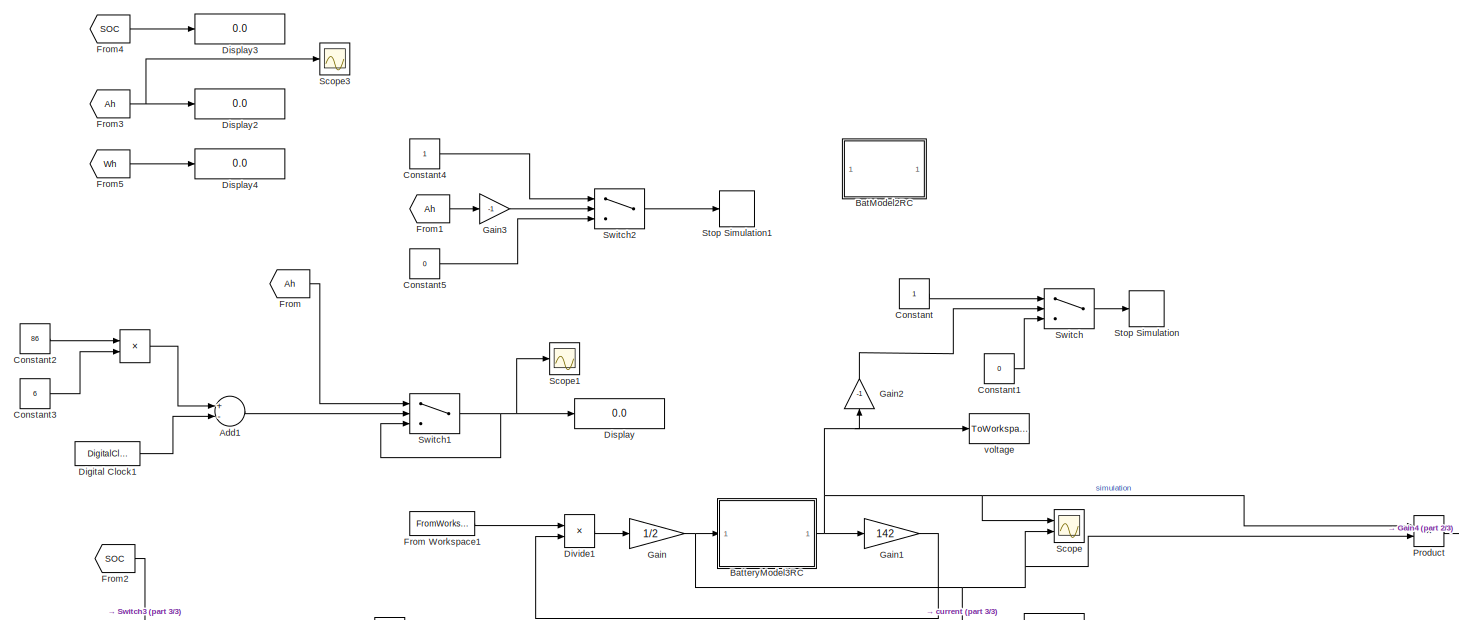
[diagram: root canvas - part 1/3, center side, full height]
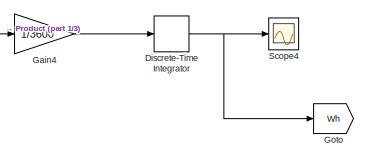
[diagram: root canvas - part 2/3, bottom right region]
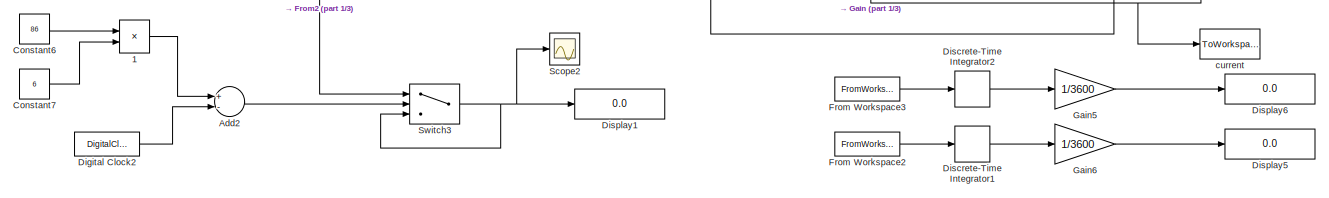
[diagram: root canvas - part 3/3, bottom left region]
MODEL slx_28b4c7de4f9d
KIND model
CONFIG AbsTol = auto
CONFIG EnableMultiTasking = off
CONFIG FixedStep = 0.01
CONFIG MaxStep = auto
CONFIG MinStep = auto
CONFIG RelTol = 1e-3
CONFIG SampleTimeConstraint = Unconstrained
CONFIG Solver = FixedStepDiscrete
CONFIG SolverName = FixedStepDiscrete
CONFIG StartTime = 0.0
CONFIG StopTime = 86.24
BLOCK [Product]  
  Commented = on
  InputSameDT = off
  Inputs = **
  OutDataTypeStr = Inherit: Inherit via internal rule
  Ports = [2, 1]
  RndMeth = Floor
  SaturateOnIntegerOverflow = off
BLOCK [Product]  1
  Commented = on
  InputSameDT = off
  Inputs = **
  OutDataTypeStr = Inherit: Inherit via internal rule
  Ports = [2, 1]
  RndMeth = Floor
  SaturateOnIntegerOverflow = off
BLOCK [Sum] Add1
  Commented = on
  InputSameDT = off
  Inputs = +-
  OutDataTypeStr = Inherit: Inherit via internal rule
  Ports = [2, 1]
  SaturateOnIntegerOverflow = off
BLOCK [Sum] Add2
  Commented = on
  InputSameDT = off
  Inputs = +-
  OutDataTypeStr = Inherit: Inherit via internal rule
  Ports = [2, 1]
  SaturateOnIntegerOverflow = off
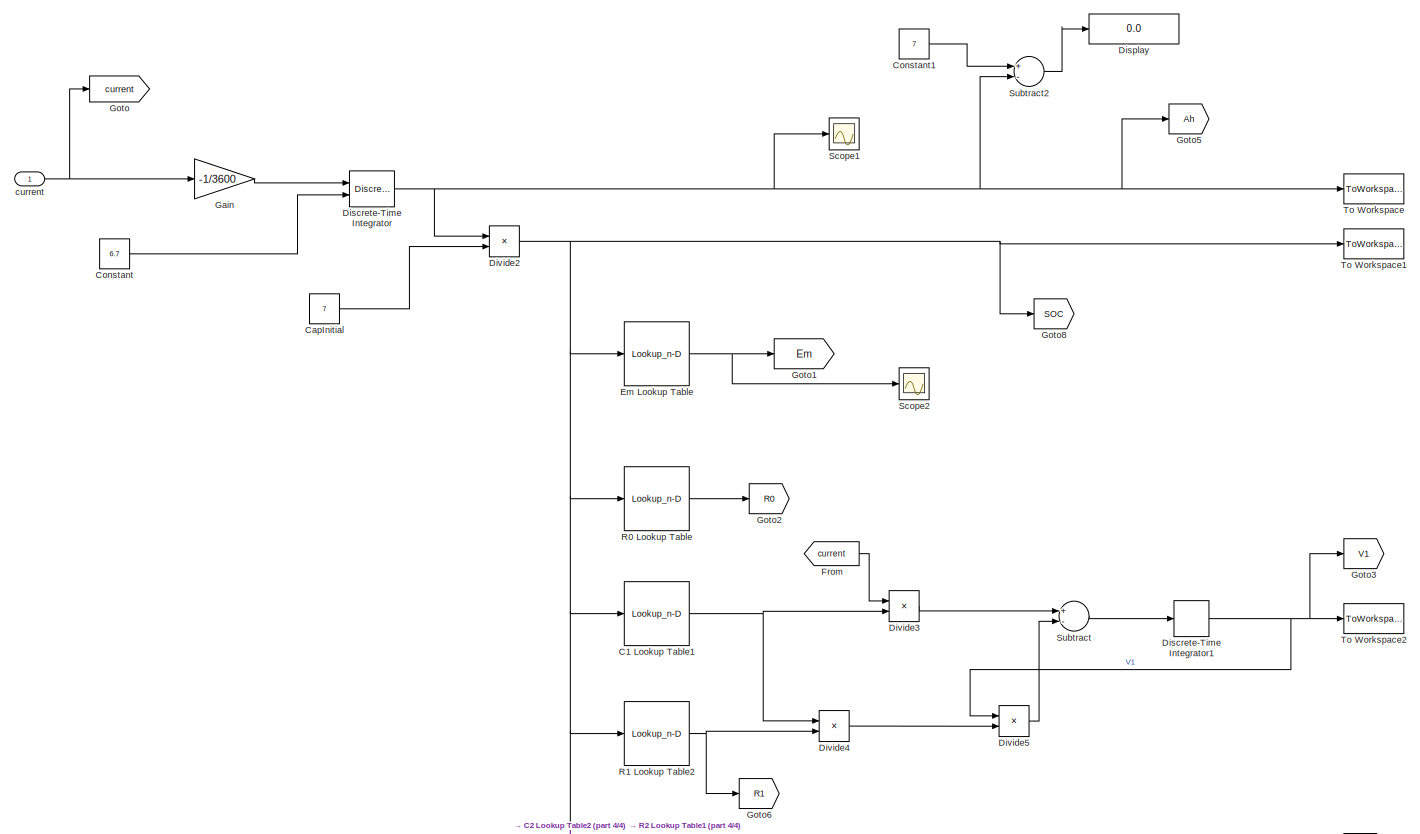
[diagram: BatModel2RC - part 1/4, middle left region]
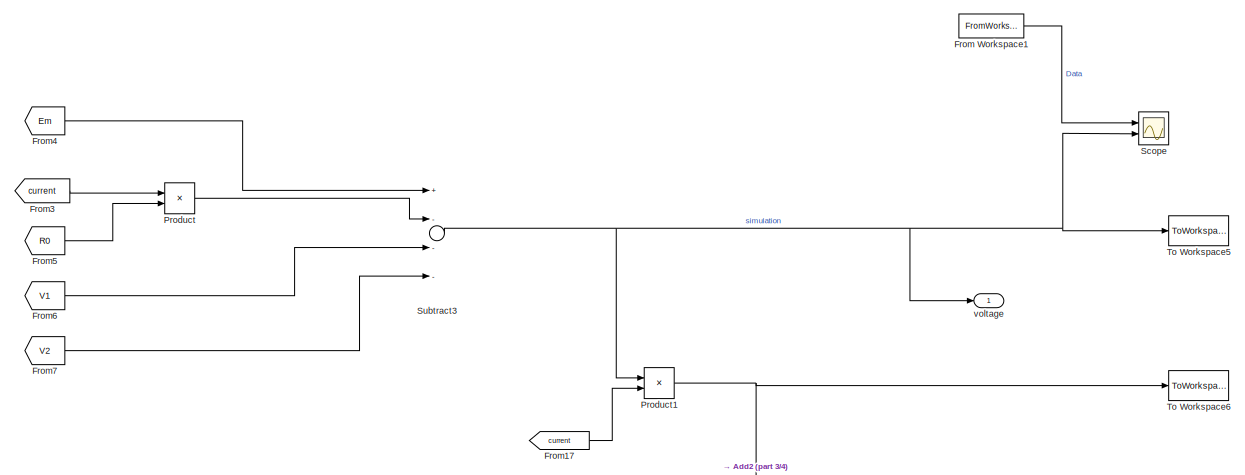
[diagram: BatModel2RC - part 2/4, middle right region]
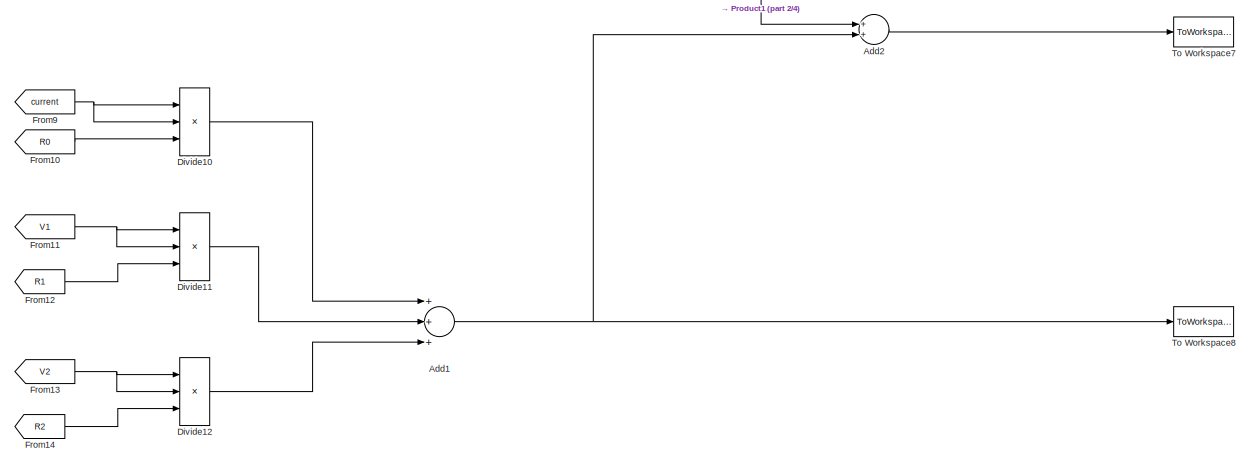
[diagram: BatModel2RC - part 3/4, bottom right region]
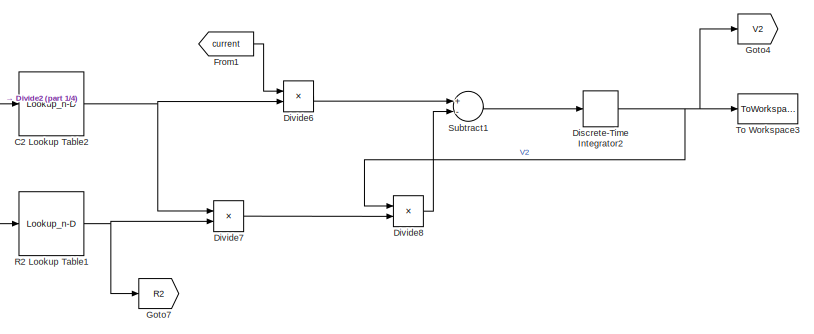
[diagram: BatModel2RC - part 4/4, bottom left region]
BLOCK [SubSystem] BatModel2RC
  Commented = on
  Ports = [1, 1]
  RequestExecContextInheritance = off
BLOCK [Sum] BatModel2RC/Add1
  Commented = on
  InputSameDT = off
  Inputs = +++
  OutDataTypeStr = Inherit: Inherit via internal rule
  Ports = [3, 1]
  SaturateOnIntegerOverflow = off
BLOCK [Sum] BatModel2RC/Add2
  Commented = on
  InputSameDT = off
  OutDataTypeStr = Inherit: Inherit via internal rule
  Ports = [2, 1]
  SaturateOnIntegerOverflow = off
BLOCK [Lookup_n-D] BatModel2RC/C1 Lookup Table1
  BreakpointsForDimension1 = SOC_LUT
  InternalRulePriority = Speed
  NumberOfTableDimensions = 1
  Ports = [1, 1]
  RndMeth = Simplest
  Table = C1Prime(1,:)
BLOCK [Lookup_n-D] BatModel2RC/C2 Lookup Table2
  BreakpointsForDimension1 = SOC_LUT
  InternalRulePriority = Speed
  NumberOfTableDimensions = 1
  Ports = [1, 1]
  RndMeth = Simplest
  Table = C2Prime(1,:)
BLOCK [Constant] BatModel2RC/CapInitial
  SampleTime = -1
  Value = 7
BLOCK [Constant] BatModel2RC/Constant
  SampleTime = -1
  Value = 6.7
BLOCK [Constant] BatModel2RC/Constant1
  SampleTime = 0.01
  Value = 7
BLOCK [DiscreteIntegrator] BatModel2RC/Discrete-Time Integrator
  ICPrevOutput = DiscIntNeverNeededParam
  ICPrevScaledInput = DiscIntNeverNeededParam
  InitialConditionSetting = Auto
  InitialConditionSource = external
  Ports = [2, 1]
  SampleTime = -1
BLOCK [DiscreteIntegrator] BatModel2RC/Discrete-Time Integrator1
  ICPrevOutput = DiscIntNeverNeededParam
  ICPrevScaledInput = DiscIntNeverNeededParam
  InitialCondition = InitialCapVoltage(1)
  InitialConditionSetting = Auto
  Ports = [1, 1]
  SampleTime = -1
BLOCK [DiscreteIntegrator] BatModel2RC/Discrete-Time Integrator2
  ICPrevOutput = DiscIntNeverNeededParam
  ICPrevScaledInput = DiscIntNeverNeededParam
  InitialCondition = InitialCapVoltage(2)
  InitialConditionSetting = Auto
  Ports = [1, 1]
  SampleTime = -1
BLOCK [Display] BatModel2RC/Display
  Decimation = 1
  Ports = [1]
BLOCK [Product] BatModel2RC/Divide10
  Commented = on
  InputSameDT = off
  Inputs = ***
  OutDataTypeStr = Inherit: Inherit via internal rule
  Ports = [3, 1]
  RndMeth = Floor
  SaturateOnIntegerOverflow = off
BLOCK [Product] BatModel2RC/Divide11
  Commented = on
  InputSameDT = off
  Inputs = **/
  OutDataTypeStr = Inherit: Inherit via internal rule
  Ports = [3, 1]
  RndMeth = Floor
  SaturateOnIntegerOverflow = off
BLOCK [Product] BatModel2RC/Divide12
  Commented = on
  InputSameDT = off
  Inputs = **/
  OutDataTypeStr = Inherit: Inherit via internal rule
  Ports = [3, 1]
  RndMeth = Floor
  SaturateOnIntegerOverflow = off
BLOCK [Product] BatModel2RC/Divide2
  InputSameDT = off
  Inputs = */
  OutDataTypeStr = Inherit: Inherit via internal rule
  Ports = [2, 1]
  RndMeth = Floor
  SaturateOnIntegerOverflow = off
BLOCK [Product] BatModel2RC/Divide3
  InputSameDT = off
  Inputs = */
  OutDataTypeStr = Inherit: Inherit via internal rule
  Ports = [2, 1]
  RndMeth = Floor
  SaturateOnIntegerOverflow = off
BLOCK [Product] BatModel2RC/Divide4
  InputSameDT = off
  Inputs = **
  OutDataTypeStr = Inherit: Inherit via internal rule
  Ports = [2, 1]
  RndMeth = Floor
  SaturateOnIntegerOverflow = off
BLOCK [Product] BatModel2RC/Divide5
  InputSameDT = off
  Inputs = */
  OutDataTypeStr = Inherit: Inherit via internal rule
  Ports = [2, 1]
  RndMeth = Floor
  SaturateOnIntegerOverflow = off
BLOCK [Product] BatModel2RC/Divide6
  InputSameDT = off
  Inputs = */
  OutDataTypeStr = Inherit: Inherit via internal rule
  Ports = [2, 1]
  RndMeth = Floor
  SaturateOnIntegerOverflow = off
BLOCK [Product] BatModel2RC/Divide7
  InputSameDT = off
  Inputs = **
  OutDataTypeStr = Inherit: Inherit via internal rule
  Ports = [2, 1]
  RndMeth = Floor
  SaturateOnIntegerOverflow = off
BLOCK [Product] BatModel2RC/Divide8
  InputSameDT = off
  Inputs = */
  OutDataTypeStr = Inherit: Inherit via internal rule
  Ports = [2, 1]
  RndMeth = Floor
  SaturateOnIntegerOverflow = off
BLOCK [Lookup_n-D] BatModel2RC/Em Lookup Table
  BreakpointsForDimension1 = SOC_LUT
  InternalRulePriority = Speed
  NumberOfTableDimensions = 1
  Ports = [1, 1]
  RndMeth = Simplest
  Table = Em
BLOCK [From] BatModel2RC/From
  GotoTag = current
BLOCK [FromWorkspace] BatModel2RC/From Workspace1
  Commented = on
  SampleTime = 0.001
  VariableName = voltagedata
  ZeroCross = on
BLOCK [From] BatModel2RC/From1
  GotoTag = current
BLOCK [From] BatModel2RC/From10
  Commented = on
  GotoTag = R0
BLOCK [From] BatModel2RC/From11
  Commented = on
  GotoTag = V1
BLOCK [From] BatModel2RC/From12
  Commented = on
  GotoTag = R1
BLOCK [From] BatModel2RC/From13
  Commented = on
  GotoTag = V2
BLOCK [From] BatModel2RC/From14
  Commented = on
  GotoTag = R2
BLOCK [From] BatModel2RC/From17
  Commented = on
  GotoTag = current
BLOCK [From] BatModel2RC/From3
  GotoTag = current
BLOCK [From] BatModel2RC/From4
  GotoTag = Em
BLOCK [From] BatModel2RC/From5
  GotoTag = R0
BLOCK [From] BatModel2RC/From6
  GotoTag = V1
BLOCK [From] BatModel2RC/From7
  GotoTag = V2
BLOCK [From] BatModel2RC/From9
  Commented = on
  GotoTag = current
BLOCK [Gain] BatModel2RC/Gain
  Gain = -1/3600
  OutDataTypeStr = Inherit: Inherit via internal rule
  ParamDataTypeStr = Inherit: Inherit via internal rule
  SaturateOnIntegerOverflow = off
BLOCK [Goto] BatModel2RC/Goto
  GotoTag = current
BLOCK [Goto] BatModel2RC/Goto1
  GotoTag = Em
BLOCK [Goto] BatModel2RC/Goto2
  GotoTag = R0
BLOCK [Goto] BatModel2RC/Goto3
  GotoTag = V1
BLOCK [Goto] BatModel2RC/Goto4
  GotoTag = V2
BLOCK [Goto] BatModel2RC/Goto5
  GotoTag = Ah
  TagVisibility = global
BLOCK [Goto] BatModel2RC/Goto6
  GotoTag = R1
BLOCK [Goto] BatModel2RC/Goto7
  GotoTag = R2
BLOCK [Goto] BatModel2RC/Goto8
  GotoTag = SOC
  TagVisibility = global
BLOCK [Product] BatModel2RC/Product
  InputSameDT = off
  OutDataTypeStr = Inherit: Inherit via internal rule
  Ports = [2, 1]
  RndMeth = Floor
  SaturateOnIntegerOverflow = off
BLOCK [Product] BatModel2RC/Product1
  Commented = on
  InputSameDT = off
  OutDataTypeStr = Inherit: Inherit via internal rule
  Ports = [2, 1]
  RndMeth = Floor
  SaturateOnIntegerOverflow = off
BLOCK [Lookup_n-D] BatModel2RC/R0 Lookup Table
  BreakpointsForDimension1 = SOC_LUT
  InternalRulePriority = Speed
  NumberOfTableDimensions = 1
  Ports = [1, 1]
  RndMeth = Simplest
  Table = R0
BLOCK [Lookup_n-D] BatModel2RC/R1 Lookup Table2
  BreakpointsForDimension1 = SOC_LUT
  InternalRulePriority = Speed
  NumberOfTableDimensions = 1
  Ports = [1, 1]
  RndMeth = Simplest
  Table = Rx(1,:)
BLOCK [Lookup_n-D] BatModel2RC/R2 Lookup Table1
  BreakpointsForDimension1 = SOC_LUT
  InternalRulePriority = Speed
  NumberOfTableDimensions = 1
  Ports = [1, 1]
  RndMeth = Simplest
  Table = Rx(2,:)
BLOCK [Scope] BatModel2RC/Scope
  Floating = off
  NumInputPorts = 2
  Ports = [2]
  ScopeSpecificationString = Simulink.scopes.TimeScopeBlockCfg('CurrentConfiguration', extmgr.ConfigurationSet(extmgr.Configuration('Core','General UI',true),extmgr.Configuration('Core','Source UI',true),extmgr.Configuration('Sources','WiredSimulink',true),extmgr.Configuration('Visuals','Time Domain',true,'SerializedDisplays',{struct('MinYLimReal','-0.51447','MaxYLimReal','4.6302','YLabelReal','','MinYLimMag','0.00000','MaxYL...<+1431ch>
BLOCK [Scope] BatModel2RC/Scope1
  Floating = off
  NumInputPorts = 1
  Ports = [1]
  ScopeSpecificationString = Simulink.scopes.TimeScopeBlockCfg('CurrentConfiguration', extmgr.ConfigurationSet(extmgr.Configuration('Core','General UI',true),extmgr.Configuration('Core','Source UI',true),extmgr.Configuration('Sources','WiredSimulink',true,'DataLoggingVariableName','ScopeData2'),extmgr.Configuration('Visuals','Time Domain',true,'SerializedDisplays',{struct('MinYLimReal','-2.25166','MaxYLimReal','8.02796','YLab...<+1456ch>
BLOCK [Scope] BatModel2RC/Scope2
  Floating = off
  NumInputPorts = 1
  Ports = [1]
  ScopeSpecificationString = Simulink.scopes.TimeScopeBlockCfg('CurrentConfiguration', extmgr.ConfigurationSet(extmgr.Configuration('Core','General UI',true),extmgr.Configuration('Core','Source UI',true),extmgr.Configuration('Sources','WiredSimulink',true,'DataLoggingVariableName','ScopeData3'),extmgr.Configuration('Visuals','Time Domain',true,'SerializedDisplays',{struct('MinYLimReal','3.07823','MaxYLimReal','4.26372','YLabe...<+1445ch>
BLOCK [Sum] BatModel2RC/Subtract
  InputSameDT = off
  Inputs = +-
  OutDataTypeStr = Inherit: Inherit via internal rule
  Ports = [2, 1]
  SaturateOnIntegerOverflow = off
BLOCK [Sum] BatModel2RC/Subtract1
  InputSameDT = off
  Inputs = +-
  OutDataTypeStr = Inherit: Inherit via internal rule
  Ports = [2, 1]
  SaturateOnIntegerOverflow = off
BLOCK [Sum] BatModel2RC/Subtract2
  InputSameDT = off
  Inputs = +-
  OutDataTypeStr = Inherit: Inherit via internal rule
  Ports = [2, 1]
  SaturateOnIntegerOverflow = off
BLOCK [Sum] BatModel2RC/Subtract3
  InputSameDT = off
  Inputs = +---
  OutDataTypeStr = Inherit: Inherit via internal rule
  Ports = [4, 1]
  SaturateOnIntegerOverflow = off
BLOCK [ToWorkspace] BatModel2RC/To Workspace
  FixptAsFi = on
  MaxDataPoints = inf
  Ports = [1]
  SampleTime = -1
  VariableName = Ah
BLOCK [ToWorkspace] BatModel2RC/To Workspace1
  FixptAsFi = on
  MaxDataPoints = inf
  Ports = [1]
  SampleTime = -1
  VariableName = SOC
BLOCK [ToWorkspace] BatModel2RC/To Workspace2
  FixptAsFi = on
  MaxDataPoints = inf
  Ports = [1]
  SampleTime = -1
  VariableName = V1
BLOCK [ToWorkspace] BatModel2RC/To Workspace3
  FixptAsFi = on
  MaxDataPoints = inf
  Ports = [1]
  SampleTime = -1
  VariableName = V2
BLOCK [ToWorkspace] BatModel2RC/To Workspace5
  FixptAsFi = on
  MaxDataPoints = inf
  Ports = [1]
  SampleTime = -1
  VariableName = BattVolt
BLOCK [ToWorkspace] BatModel2RC/To Workspace6
  Commented = on
  FixptAsFi = on
  MaxDataPoints = inf
  Ports = [1]
  SampleTime = -1
  VariableName = PwrLoad
BLOCK [ToWorkspace] BatModel2RC/To Workspace7
  Commented = on
  FixptAsFi = on
  MaxDataPoints = inf
  Ports = [1]
  SampleTime = -1
  VariableName = PwrStored
BLOCK [ToWorkspace] BatModel2RC/To Workspace8
  Commented = on
  FixptAsFi = on
  MaxDataPoints = inf
  Ports = [1]
  SampleTime = -1
  VariableName = Pwrloss
BLOCK [Inport] BatModel2RC/current
  IconDisplay = Port number
BLOCK [Outport] BatModel2RC/voltage
  IconDisplay = Port number
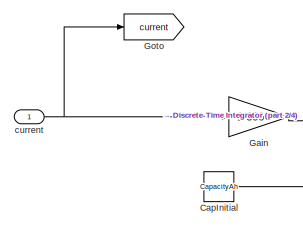
[diagram: BatteryModel3RC - part 1/4, top left region]
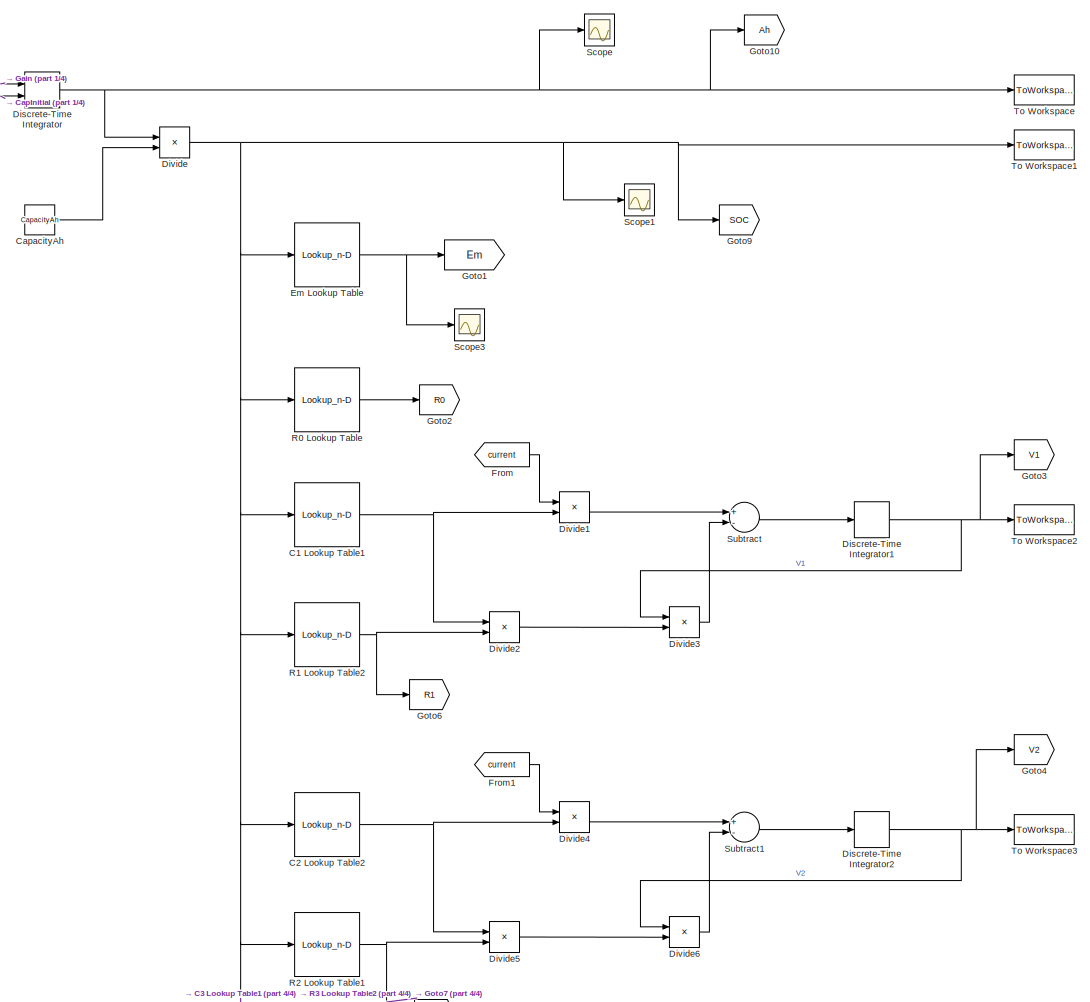
[diagram: BatteryModel3RC - part 2/4, middle left region]
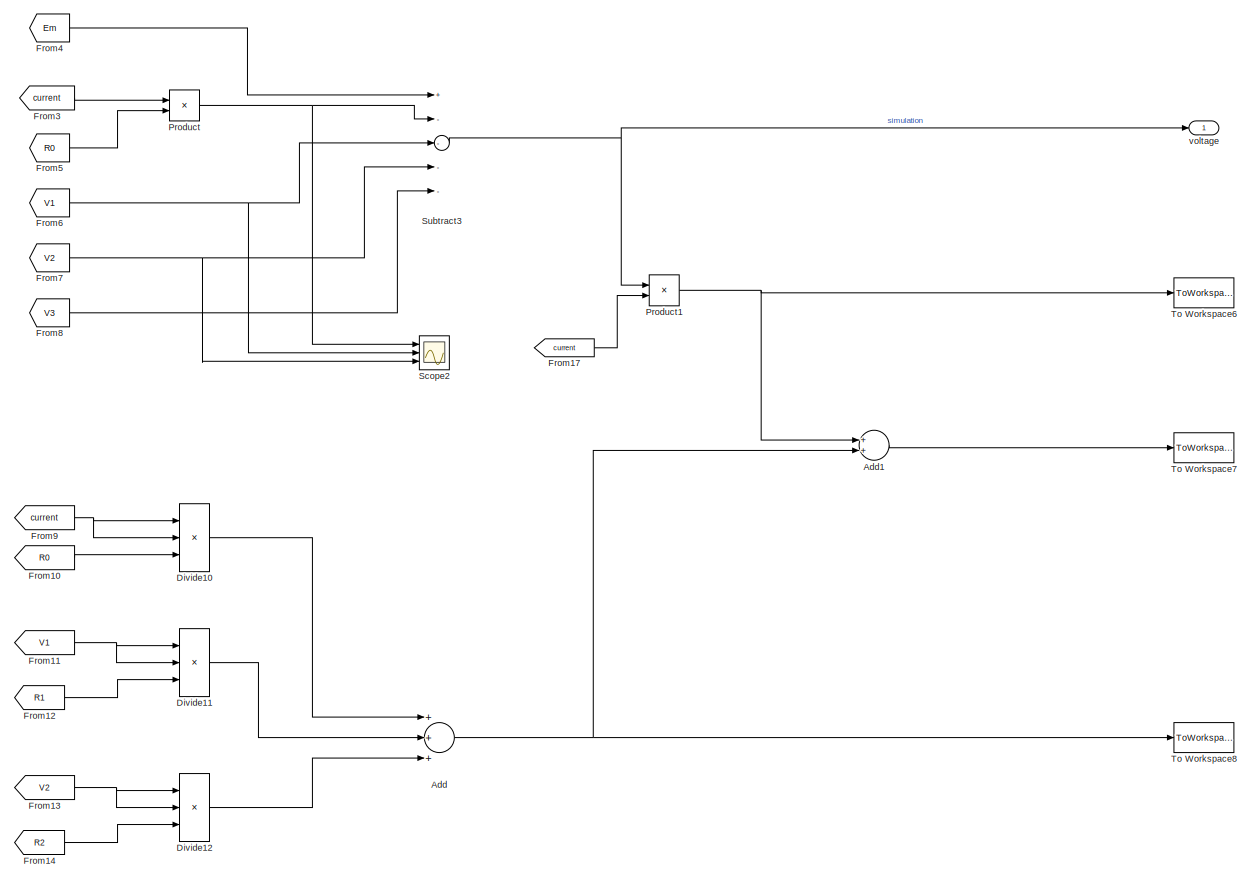
[diagram: BatteryModel3RC - part 3/4, middle right region]
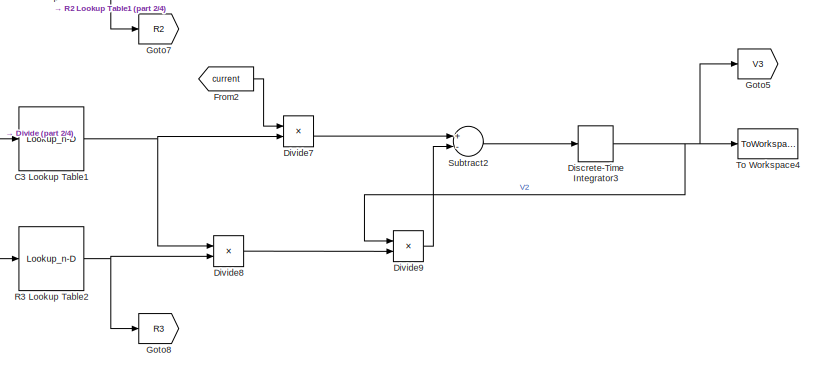
[diagram: BatteryModel3RC - part 4/4, bottom center region]
BLOCK [SubSystem] BatteryModel3RC
  Ports = [1, 1]
  RequestExecContextInheritance = off
BLOCK [Sum] BatteryModel3RC/Add
  Commented = on
  InputSameDT = off
  Inputs = +++
  OutDataTypeStr = Inherit: Inherit via internal rule
  Ports = [3, 1]
  SaturateOnIntegerOverflow = off
BLOCK [Sum] BatteryModel3RC/Add1
  Commented = on
  InputSameDT = off
  OutDataTypeStr = Inherit: Inherit via internal rule
  Ports = [2, 1]
  SaturateOnIntegerOverflow = off
BLOCK [Lookup_n-D] BatteryModel3RC/C1 Lookup Table1
  BreakpointsForDimension1 = SOC_LUT
  InternalRulePriority = Speed
  NumberOfTableDimensions = 1
  Ports = [1, 1]
  RndMeth = Simplest
  Table = C1Prime(1,:)
BLOCK [Lookup_n-D] BatteryModel3RC/C2 Lookup Table2
  BreakpointsForDimension1 = SOC_LUT
  InternalRulePriority = Speed
  NumberOfTableDimensions = 1
  Ports = [1, 1]
  RndMeth = Simplest
  Table = C2Prime(1,:)
BLOCK [Lookup_n-D] BatteryModel3RC/C3 Lookup Table1
  BreakpointsForDimension1 = SOC_LUT
  InternalRulePriority = Speed
  NumberOfTableDimensions = 1
  Ports = [1, 1]
  RndMeth = Simplest
  Table = C3Prime(1,:)
BLOCK [Constant] BatteryModel3RC/CapInitial
  SampleTime = -1
  Value = CapacityAh
BLOCK [Constant] BatteryModel3RC/CapacityAh
  SampleTime = -1
  Value = CapacityAh
BLOCK [DiscreteIntegrator] BatteryModel3RC/Discrete-Time Integrator
  ICPrevOutput = DiscIntNeverNeededParam
  ICPrevScaledInput = DiscIntNeverNeededParam
  InitialConditionSetting = Auto
  InitialConditionSource = external
  Ports = [2, 1]
  SampleTime = -1
BLOCK [DiscreteIntegrator] BatteryModel3RC/Discrete-Time Integrator1
  ICPrevOutput = DiscIntNeverNeededParam
  ICPrevScaledInput = DiscIntNeverNeededParam
  InitialConditionSetting = Auto
  Ports = [1, 1]
  SampleTime = -1
BLOCK [DiscreteIntegrator] BatteryModel3RC/Discrete-Time Integrator2
  ICPrevOutput = DiscIntNeverNeededParam
  ICPrevScaledInput = DiscIntNeverNeededParam
  InitialConditionSetting = Auto
  Ports = [1, 1]
  SampleTime = -1
BLOCK [DiscreteIntegrator] BatteryModel3RC/Discrete-Time Integrator3
  ICPrevOutput = DiscIntNeverNeededParam
  ICPrevScaledInput = DiscIntNeverNeededParam
  InitialConditionSetting = Auto
  Ports = [1, 1]
  SampleTime = -1
BLOCK [Product] BatteryModel3RC/Divide
  InputSameDT = off
  Inputs = */
  OutDataTypeStr = Inherit: Inherit via internal rule
  Ports = [2, 1]
  RndMeth = Floor
  SaturateOnIntegerOverflow = off
BLOCK [Product] BatteryModel3RC/Divide1
  InputSameDT = off
  Inputs = */
  OutDataTypeStr = Inherit: Inherit via internal rule
  Ports = [2, 1]
  RndMeth = Floor
  SaturateOnIntegerOverflow = off
BLOCK [Product] BatteryModel3RC/Divide10
  Commented = on
  InputSameDT = off
  Inputs = ***
  OutDataTypeStr = Inherit: Inherit via internal rule
  Ports = [3, 1]
  RndMeth = Floor
  SaturateOnIntegerOverflow = off
BLOCK [Product] BatteryModel3RC/Divide11
  Commented = on
  InputSameDT = off
  Inputs = **/
  OutDataTypeStr = Inherit: Inherit via internal rule
  Ports = [3, 1]
  RndMeth = Floor
  SaturateOnIntegerOverflow = off
BLOCK [Product] BatteryModel3RC/Divide12
  Commented = on
  InputSameDT = off
  Inputs = **/
  OutDataTypeStr = Inherit: Inherit via internal rule
  Ports = [3, 1]
  RndMeth = Floor
  SaturateOnIntegerOverflow = off
BLOCK [Product] BatteryModel3RC/Divide2
  InputSameDT = off
  Inputs = **
  OutDataTypeStr = Inherit: Inherit via internal rule
  Ports = [2, 1]
  RndMeth = Floor
  SaturateOnIntegerOverflow = off
BLOCK [Product] BatteryModel3RC/Divide3
  InputSameDT = off
  Inputs = */
  OutDataTypeStr = Inherit: Inherit via internal rule
  Ports = [2, 1]
  RndMeth = Floor
  SaturateOnIntegerOverflow = off
BLOCK [Product] BatteryModel3RC/Divide4
  InputSameDT = off
  Inputs = */
  OutDataTypeStr = Inherit: Inherit via internal rule
  Ports = [2, 1]
  RndMeth = Floor
  SaturateOnIntegerOverflow = off
BLOCK [Product] BatteryModel3RC/Divide5
  InputSameDT = off
  Inputs = **
  OutDataTypeStr = Inherit: Inherit via internal rule
  Ports = [2, 1]
  RndMeth = Floor
  SaturateOnIntegerOverflow = off
BLOCK [Product] BatteryModel3RC/Divide6
  InputSameDT = off
  Inputs = */
  OutDataTypeStr = Inherit: Inherit via internal rule
  Ports = [2, 1]
  RndMeth = Floor
  SaturateOnIntegerOverflow = off
BLOCK [Product] BatteryModel3RC/Divide7
  InputSameDT = off
  Inputs = */
  OutDataTypeStr = Inherit: Inherit via internal rule
  Ports = [2, 1]
  RndMeth = Floor
  SaturateOnIntegerOverflow = off
BLOCK [Product] BatteryModel3RC/Divide8
  InputSameDT = off
  Inputs = **
  OutDataTypeStr = Inherit: Inherit via internal rule
  Ports = [2, 1]
  RndMeth = Floor
  SaturateOnIntegerOverflow = off
BLOCK [Product] BatteryModel3RC/Divide9
  InputSameDT = off
  Inputs = */
  OutDataTypeStr = Inherit: Inherit via internal rule
  Ports = [2, 1]
  RndMeth = Floor
  SaturateOnIntegerOverflow = off
BLOCK [Lookup_n-D] BatteryModel3RC/Em Lookup Table
  BreakpointsForDimension1 = SOC_LUT
  InternalRulePriority = Speed
  NumberOfTableDimensions = 1
  Ports = [1, 1]
  RndMeth = Simplest
  Table = Em
BLOCK [From] BatteryModel3RC/From
  GotoTag = current
BLOCK [From] BatteryModel3RC/From1
  GotoTag = current
BLOCK [From] BatteryModel3RC/From10
  Commented = on
  GotoTag = R0
BLOCK [From] BatteryModel3RC/From11
  Commented = on
  GotoTag = V1
BLOCK [From] BatteryModel3RC/From12
  Commented = on
  GotoTag = R1
BLOCK [From] BatteryModel3RC/From13
  Commented = on
  GotoTag = V2
BLOCK [From] BatteryModel3RC/From14
  Commented = on
  GotoTag = R2
BLOCK [From] BatteryModel3RC/From17
  Commented = on
  GotoTag = current
BLOCK [From] BatteryModel3RC/From2
  GotoTag = current
BLOCK [From] BatteryModel3RC/From3
  GotoTag = current
BLOCK [From] BatteryModel3RC/From4
  GotoTag = Em
BLOCK [From] BatteryModel3RC/From5
  GotoTag = R0
BLOCK [From] BatteryModel3RC/From6
  GotoTag = V1
BLOCK [From] BatteryModel3RC/From7
  GotoTag = V2
BLOCK [From] BatteryModel3RC/From8
  GotoTag = V3
BLOCK [From] BatteryModel3RC/From9
  Commented = on
  GotoTag = current
BLOCK [Gain] BatteryModel3RC/Gain
  Gain = -1/3600
  OutDataTypeStr = Inherit: Inherit via internal rule
  ParamDataTypeStr = Inherit: Inherit via internal rule
  SaturateOnIntegerOverflow = off
BLOCK [Goto] BatteryModel3RC/Goto
  GotoTag = current
BLOCK [Goto] BatteryModel3RC/Goto1
  GotoTag = Em
BLOCK [Goto] BatteryModel3RC/Goto10
  GotoTag = Ah
  TagVisibility = global
BLOCK [Goto] BatteryModel3RC/Goto2
  GotoTag = R0
BLOCK [Goto] BatteryModel3RC/Goto3
  GotoTag = V1
BLOCK [Goto] BatteryModel3RC/Goto4
  GotoTag = V2
BLOCK [Goto] BatteryModel3RC/Goto5
  GotoTag = V3
BLOCK [Goto] BatteryModel3RC/Goto6
  GotoTag = R1
BLOCK [Goto] BatteryModel3RC/Goto7
  GotoTag = R2
BLOCK [Goto] BatteryModel3RC/Goto8
  GotoTag = R3
BLOCK [Goto] BatteryModel3RC/Goto9
  GotoTag = SOC
  TagVisibility = global
BLOCK [Product] BatteryModel3RC/Product
  InputSameDT = off
  OutDataTypeStr = Inherit: Inherit via internal rule
  Ports = [2, 1]
  RndMeth = Floor
  SaturateOnIntegerOverflow = off
BLOCK [Product] BatteryModel3RC/Product1
  Commented = on
  InputSameDT = off
  OutDataTypeStr = Inherit: Inherit via internal rule
  Ports = [2, 1]
  RndMeth = Floor
  SaturateOnIntegerOverflow = off
BLOCK [Lookup_n-D] BatteryModel3RC/R0 Lookup Table
  BreakpointsForDimension1 = SOC_LUT
  InternalRulePriority = Speed
  NumberOfTableDimensions = 1
  Ports = [1, 1]
  RndMeth = Simplest
  Table = R0
BLOCK [Lookup_n-D] BatteryModel3RC/R1 Lookup Table2
  BreakpointsForDimension1 = SOC_LUT
  InternalRulePriority = Speed
  NumberOfTableDimensions = 1
  Ports = [1, 1]
  RndMeth = Simplest
  Table = Rx(1,:)
BLOCK [Lookup_n-D] BatteryModel3RC/R2 Lookup Table1
  BreakpointsForDimension1 = SOC_LUT
  InternalRulePriority = Speed
  NumberOfTableDimensions = 1
  Ports = [1, 1]
  RndMeth = Simplest
  Table = Rx(2,:)
BLOCK [Lookup_n-D] BatteryModel3RC/R3 Lookup Table2
  BreakpointsForDimension1 = SOC_LUT
  InternalRulePriority = Speed
  NumberOfTableDimensions = 1
  Ports = [1, 1]
  RndMeth = Simplest
  Table = Rx(3,:)
BLOCK [Scope] BatteryModel3RC/Scope
  Floating = off
  NumInputPorts = 1
  Ports = [1]
  ScopeSpecificationString = Simulink.scopes.TimeScopeBlockCfg('CurrentConfiguration', extmgr.ConfigurationSet(extmgr.Configuration('Core','General UI',true),extmgr.Configuration('Core','Source UI',true),extmgr.Configuration('Sources','WiredSimulink',true,'DataLoggingVariableName','ScopeData1'),extmgr.Configuration('Visuals','Time Domain',true,'SerializedDisplays',{struct('MinYLimReal','-1.10566','MaxYLimReal','7.90063','YLab...<+1383ch>
BLOCK [Scope] BatteryModel3RC/Scope1
  Floating = off
  NumInputPorts = 1
  Ports = [1]
  ScopeSpecificationString = Simulink.scopes.TimeScopeBlockCfg('CurrentConfiguration', extmgr.ConfigurationSet(extmgr.Configuration('Core','General UI',true),extmgr.Configuration('Core','Source UI',true),extmgr.Configuration('Sources','WiredSimulink',true,'DataLoggingVariableName','ScopeData2'),extmgr.Configuration('Visuals','Time Domain',true,'SerializedDisplays',{struct('MinYLimReal','0.56933','MaxYLimReal','0.84289','YLabe...<+1436ch>
BLOCK [Scope] BatteryModel3RC/Scope2
  Floating = off
  NumInputPorts = 3
  Ports = [3]
  ScopeSpecificationString = Simulink.scopes.TimeScopeBlockCfg('CurrentConfiguration', extmgr.ConfigurationSet(extmgr.Configuration('Core','General UI',true),extmgr.Configuration('Core','Source UI',true),extmgr.Configuration('Sources','WiredSimulink',true,'DataLoggingVariableName','ScopeData1'),extmgr.Configuration('Visuals','Time Domain',true,'SerializedDisplays',{struct('MinYLimReal','-0.01023','MaxYLimReal','0.09145','YLab...<+1519ch>
BLOCK [Scope] BatteryModel3RC/Scope3
  Floating = off
  NumInputPorts = 1
  Ports = [1]
  ScopeSpecificationString = Simulink.scopes.TimeScopeBlockCfg('CurrentConfiguration', extmgr.ConfigurationSet(extmgr.Configuration('Core','General UI',true),extmgr.Configuration('Core','Source UI',true),extmgr.Configuration('Sources','WiredSimulink',true,'DataLoggingVariableName','ScopeData1'),extmgr.Configuration('Visuals','Time Domain',true,'SerializedDisplays',{struct('MinYLimReal','0.56933','MaxYLimReal','0.84289','YLabe...<+1436ch>
BLOCK [Sum] BatteryModel3RC/Subtract
  InputSameDT = off
  Inputs = +-
  OutDataTypeStr = Inherit: Inherit via internal rule
  Ports = [2, 1]
  SaturateOnIntegerOverflow = off
BLOCK [Sum] BatteryModel3RC/Subtract1
  InputSameDT = off
  Inputs = +-
  OutDataTypeStr = Inherit: Inherit via internal rule
  Ports = [2, 1]
  SaturateOnIntegerOverflow = off
BLOCK [Sum] BatteryModel3RC/Subtract2
  InputSameDT = off
  Inputs = +-
  OutDataTypeStr = Inherit: Inherit via internal rule
  Ports = [2, 1]
  SaturateOnIntegerOverflow = off
BLOCK [Sum] BatteryModel3RC/Subtract3
  InputSameDT = off
  Inputs = +----
  OutDataTypeStr = Inherit: Inherit via internal rule
  Ports = [5, 1]
  SaturateOnIntegerOverflow = off
BLOCK [ToWorkspace] BatteryModel3RC/To Workspace
  FixptAsFi = on
  MaxDataPoints = inf
  Ports = [1]
  SampleTime = -1
  VariableName = Ah
BLOCK [ToWorkspace] BatteryModel3RC/To Workspace1
  FixptAsFi = on
  MaxDataPoints = inf
  Ports = [1]
  SampleTime = -1
  VariableName = SOC
BLOCK [ToWorkspace] BatteryModel3RC/To Workspace2
  FixptAsFi = on
  MaxDataPoints = inf
  Ports = [1]
  SampleTime = -1
  VariableName = V1
BLOCK [ToWorkspace] BatteryModel3RC/To Workspace3
  FixptAsFi = on
  MaxDataPoints = inf
  Ports = [1]
  SampleTime = -1
  VariableName = V2
BLOCK [ToWorkspace] BatteryModel3RC/To Workspace4
  FixptAsFi = on
  MaxDataPoints = inf
  Ports = [1]
  SampleTime = -1
  VariableName = V
BLOCK [ToWorkspace] BatteryModel3RC/To Workspace6
  Commented = on
  FixptAsFi = on
  MaxDataPoints = inf
  Ports = [1]
  SampleTime = -1
  VariableName = PwrLoad
BLOCK [ToWorkspace] BatteryModel3RC/To Workspace7
  Commented = on
  FixptAsFi = on
  MaxDataPoints = inf
  Ports = [1]
  SampleTime = -1
  VariableName = PwrStored
BLOCK [ToWorkspace] BatteryModel3RC/To Workspace8
  Commented = on
  FixptAsFi = on
  MaxDataPoints = inf
  Ports = [1]
  SampleTime = -1
  VariableName = Pwrloss
BLOCK [Inport] BatteryModel3RC/current
  IconDisplay = Port number
BLOCK [Outport] BatteryModel3RC/voltage
  IconDisplay = Port number
BLOCK [Constant] Constant
  Commented = on
  SampleTime = 0.01
BLOCK [Constant] Constant1
  Commented = on
  SampleTime = 0.01
  Value = 0
BLOCK [Constant] Constant2
  Commented = on
  SampleTime = 0.01
  Value = 86
BLOCK [Constant] Constant3
  Commented = on
  SampleTime = 0.01
  Value = 6
BLOCK [Constant] Constant4
  SampleTime = 0.01
BLOCK [Constant] Constant5
  SampleTime = 0.01
  Value = 0
BLOCK [Constant] Constant6
  Commented = on
  SampleTime = 0.01
  Value = 86
BLOCK [Constant] Constant7
  Commented = on
  SampleTime = 0.01
  Value = 6
BLOCK [DigitalClock] Digital Clock1
  Commented = on
  SampleTime = 0.01
BLOCK [DigitalClock] Digital Clock2
  Commented = on
  SampleTime = 0.01
BLOCK [DiscreteIntegrator] Discrete-Time Integrator
  ICPrevOutput = DiscIntNeverNeededParam
  ICPrevScaledInput = DiscIntNeverNeededParam
  InitialConditionSetting = Auto
  Ports = [1, 1]
  SampleTime = -1
BLOCK [DiscreteIntegrator] Discrete-Time Integrator1
  ICPrevOutput = DiscIntNeverNeededParam
  ICPrevScaledInput = DiscIntNeverNeededParam
  InitialConditionSetting = Auto
  Ports = [1, 1]
  SampleTime = -1
BLOCK [DiscreteIntegrator] Discrete-Time Integrator2
  ICPrevOutput = DiscIntNeverNeededParam
  ICPrevScaledInput = DiscIntNeverNeededParam
  InitialConditionSetting = Auto
  Ports = [1, 1]
  SampleTime = -1
BLOCK [Display] Display
  Commented = on
  Decimation = 1
  Ports = [1]
BLOCK [Display] Display1
  Commented = on
  Decimation = 1
  Ports = [1]
BLOCK [Display] Display2
  Decimation = 1
  Ports = [1]
BLOCK [Display] Display3
  Decimation = 1
  Ports = [1]
BLOCK [Display] Display4
  Decimation = 1
  Ports = [1]
BLOCK [Display] Display5
  Decimation = 1
  Ports = [1]
BLOCK [Display] Display6
  Decimation = 1
  Ports = [1]
BLOCK [Product] Divide1
  InputSameDT = off
  Inputs = */
  OutDataTypeStr = Inherit: Inherit via internal rule
  Ports = [2, 1]
  RndMeth = Floor
  SaturateOnIntegerOverflow = off
BLOCK [From] From
  Commented = on
  GotoTag = Ah
  TagVisibility = global
BLOCK [FromWorkspace] From Workspace1
  Interpolate = off
  OutputAfterFinalValue = Cyclic repetition
  SampleTime = 0.01
  VariableName = P70
BLOCK [FromWorkspace] From Workspace2
  Interpolate = off
  OutputAfterFinalValue = Cyclic repetition
  SampleTime = 0.01
  VariableName = P70
BLOCK [FromWorkspace] From Workspace3
  Interpolate = off
  OutputAfterFinalValue = Cyclic repetition
  SampleTime = 0.01
  VariableName = P50
BLOCK [From] From1
  GotoTag = Ah
  TagVisibility = global
BLOCK [From] From2
  Commented = on
  GotoTag = SOC
  TagVisibility = global
BLOCK [From] From3
  GotoTag = Ah
  TagVisibility = global
BLOCK [From] From4
  GotoTag = SOC
  TagVisibility = global
BLOCK [From] From5
  GotoTag = Wh
BLOCK [Gain] Gain
  Gain = 1/2
  OutDataTypeStr = Inherit: Inherit via internal rule
  ParamDataTypeStr = Inherit: Inherit via internal rule
  SaturateOnIntegerOverflow = off
BLOCK [Gain] Gain1
  Gain = 142
  OutDataTypeStr = Inherit: Inherit via internal rule
  ParamDataTypeStr = Inherit: Inherit via internal rule
  SaturateOnIntegerOverflow = off
BLOCK [Gain] Gain2
  Commented = on
  Gain = -1
  OutDataTypeStr = Inherit: Inherit via internal rule
  ParamDataTypeStr = Inherit: Inherit via internal rule
  SaturateOnIntegerOverflow = off
BLOCK [Gain] Gain3
  Gain = -1
  OutDataTypeStr = Inherit: Inherit via internal rule
  ParamDataTypeStr = Inherit: Inherit via internal rule
  SaturateOnIntegerOverflow = off
BLOCK [Gain] Gain4
  Gain = 1/3600
  OutDataTypeStr = Inherit: Inherit via internal rule
  ParamDataTypeStr = Inherit: Inherit via internal rule
  SaturateOnIntegerOverflow = off
BLOCK [Gain] Gain5
  Gain = 1/3600
  OutDataTypeStr = Inherit: Inherit via internal rule
  ParamDataTypeStr = Inherit: Inherit via internal rule
  SaturateOnIntegerOverflow = off
BLOCK [Gain] Gain6
  Gain = 1/3600
  OutDataTypeStr = Inherit: Inherit via internal rule
  ParamDataTypeStr = Inherit: Inherit via internal rule
  SaturateOnIntegerOverflow = off
BLOCK [Goto] Goto
  GotoTag = Wh
BLOCK [Product] Product
  InputSameDT = off
  OutDataTypeStr = Inherit: Inherit via internal rule
  Ports = [2, 1]
  RndMeth = Floor
  SaturateOnIntegerOverflow = off
BLOCK [Scope] Scope
  Floating = off
  NumInputPorts = 2
  Ports = [2]
  ScopeSpecificationString = Simulink.scopes.TimeScopeBlockCfg('CurrentConfiguration', extmgr.ConfigurationSet(extmgr.Configuration('Core','General UI',true),extmgr.Configuration('Core','Source UI',true),extmgr.Configuration('Sources','WiredSimulink',true,'DataLoggingVariableName','ScopeData1'),extmgr.Configuration('Visuals','Time Domain',true,'SerializedDisplays',{struct('MinYLimReal','2.87862','MaxYLimReal','4.35603','YLabe...<+2026ch>
BLOCK [Scope] Scope1
  Commented = on
  Floating = off
  NumInputPorts = 1
  Ports = [1]
  ScopeSpecificationString = Simulink.scopes.TimeScopeBlockCfg('CurrentConfiguration', extmgr.ConfigurationSet(extmgr.Configuration('Core','General UI',true),extmgr.Configuration('Core','Source UI',true),extmgr.Configuration('Sources','WiredSimulink',true,'DataLoggingVariableName','ScopeData1'),extmgr.Configuration('Visuals','Time Domain',true,'SerializedDisplays',{struct('MinYLimReal','-1.0508','MaxYLimReal','7.89453','YLabe...<+1418ch>
BLOCK [Scope] Scope2
  Commented = on
  Floating = off
  NumInputPorts = 1
  Ports = [1]
  ScopeSpecificationString = Simulink.scopes.TimeScopeBlockCfg('CurrentConfiguration', extmgr.ConfigurationSet(extmgr.Configuration('Core','General UI',true),extmgr.Configuration('Core','Source UI',true),extmgr.Configuration('Sources','WiredSimulink',true,'DataLoggingVariableName','ScopeData1'),extmgr.Configuration('Visuals','Time Domain',true,'SerializedDisplays',{struct('MinYLimReal','-0.14594','MaxYLimReal','1.09646','YLab...<+1420ch>
BLOCK [Scope] Scope3
  Floating = off
  NumInputPorts = 1
  Ports = [1]
  ScopeSpecificationString = Simulink.scopes.TimeScopeBlockCfg('CurrentConfiguration', extmgr.ConfigurationSet(extmgr.Configuration('Core','General UI',true),extmgr.Configuration('Core','Source UI',true),extmgr.Configuration('Sources','WiredSimulink',true,'DataLoggingVariableName','ScopeData1'),extmgr.Configuration('Visuals','Time Domain',true,'SerializedDisplays',{struct('MinYLimReal','-0.77507','MaxYLimReal','7.8639','YLabe...<+1379ch>
BLOCK [Scope] Scope4
  Floating = off
  NumInputPorts = 1
  Ports = [1]
  ScopeSpecificationString = Simulink.scopes.TimeScopeBlockCfg('CurrentConfiguration', extmgr.ConfigurationSet(extmgr.Configuration('Core','General UI',true),extmgr.Configuration('Core','Source UI',true),extmgr.Configuration('Sources','WiredSimulink',true,'DataLoggingVariableName','ScopeData1'),extmgr.Configuration('Visuals','Time Domain',true,'SerializedDisplays',{struct('MinYLimReal','-3.32924','MaxYLimReal','29.96314','YLa...<+1460ch>
BLOCK [Stop] Stop Simulation
  Commented = on
BLOCK [Stop] Stop Simulation1
BLOCK [Switch] Switch
  Commented = on
  Criteria = u2 > Threshold
  InputSameDT = off
  SaturateOnIntegerOverflow = off
  Threshold = -3
BLOCK [Switch] Switch1
  Commented = on
  Criteria = u2 > Threshold
  InputSameDT = off
  SaturateOnIntegerOverflow = off
BLOCK [Switch] Switch2
  Criteria = u2 > Threshold
  InputSameDT = off
  SaturateOnIntegerOverflow = off
BLOCK [Switch] Switch3
  Commented = on
  Criteria = u2 > Threshold
  InputSameDT = off
  SaturateOnIntegerOverflow = off
BLOCK [ToWorkspace] current
  FixptAsFi = on
  MaxDataPoints = inf
  Ports = [1]
  SampleTime = -1
  SaveFormat = Structure With Time
  VariableName = current
BLOCK [ToWorkspace] voltage
  FixptAsFi = on
  MaxDataPoints = inf
  Ports = [1]
  SampleTime = -1
  SaveFormat = Structure With Time
  VariableName = voltage
LINE  1:1 -> Add2:1
LINE  :1 -> Add1:1
LINE Add1:1 -> Switch1:2
LINE Add2:1 -> Switch3:2
NET BatModel2RC/Add1:1 -> BatModel2RC/Add2:2, BatModel2RC/To Workspace8:1
LINE BatModel2RC/Add2:1 -> BatModel2RC/To Workspace7:1
NET BatModel2RC/C1 Lookup Table1:1 -> BatModel2RC/Divide3:2, BatModel2RC/Divide4:1
NET BatModel2RC/C2 Lookup Table2:1 -> BatModel2RC/Divide6:2, BatModel2RC/Divide7:1
LINE BatModel2RC/CapInitial:1 -> BatModel2RC/Divide2:2
LINE BatModel2RC/Constant1:1 -> BatModel2RC/Subtract2:1
LINE BatModel2RC/Constant:1 -> BatModel2RC/Discrete-Time Integrator:2
NET BatModel2RC/Discrete-Time Integrator1:1 -> BatModel2RC/Divide5:1, BatModel2RC/Goto3:1, BatModel2RC/To Workspace2:1
NET BatModel2RC/Discrete-Time Integrator2:1 -> BatModel2RC/Divide8:1, BatModel2RC/Goto4:1, BatModel2RC/To Workspace3:1
NET BatModel2RC/Discrete-Time Integrator:1 -> BatModel2RC/Divide2:1, BatModel2RC/Goto5:1, BatModel2RC/Scope1:1, BatModel2RC/Subtract2:2, BatModel2RC/To Workspace:1
LINE BatModel2RC/Divide10:1 -> BatModel2RC/Add1:1
LINE BatModel2RC/Divide11:1 -> BatModel2RC/Add1:2
LINE BatModel2RC/Divide12:1 -> BatModel2RC/Add1:3
NET BatModel2RC/Divide2:1 -> BatModel2RC/C1 Lookup Table1:1, BatModel2RC/C2 Lookup Table2:1, BatModel2RC/Em Lookup Table:1, BatModel2RC/Goto8:1, BatModel2RC/R0 Lookup Table:1, BatModel2RC/R1 Lookup Table2:1, BatModel2RC/R2 Lookup Table1:1, BatModel2RC/To Workspace1:1
LINE BatModel2RC/Divide3:1 -> BatModel2RC/Subtract:1
LINE BatModel2RC/Divide4:1 -> BatModel2RC/Divide5:2
LINE BatModel2RC/Divide5:1 -> BatModel2RC/Subtract:2
LINE BatModel2RC/Divide6:1 -> BatModel2RC/Subtract1:1
LINE BatModel2RC/Divide7:1 -> BatModel2RC/Divide8:2
LINE BatModel2RC/Divide8:1 -> BatModel2RC/Subtract1:2
NET BatModel2RC/Em Lookup Table:1 -> BatModel2RC/Goto1:1, BatModel2RC/Scope2:1
LINE BatModel2RC/From Workspace1:1 -> BatModel2RC/Scope:1
LINE BatModel2RC/From10:1 -> BatModel2RC/Divide10:3
NET BatModel2RC/From11:1 -> BatModel2RC/Divide11:1, BatModel2RC/Divide11:2
LINE BatModel2RC/From12:1 -> BatModel2RC/Divide11:3
NET BatModel2RC/From13:1 -> BatModel2RC/Divide12:1, BatModel2RC/Divide12:2
LINE BatModel2RC/From14:1 -> BatModel2RC/Divide12:3
LINE BatModel2RC/From17:1 -> BatModel2RC/Product1:2
LINE BatModel2RC/From1:1 -> BatModel2RC/Divide6:1
LINE BatModel2RC/From3:1 -> BatModel2RC/Product:1
LINE BatModel2RC/From4:1 -> BatModel2RC/Subtract3:1
LINE BatModel2RC/From5:1 -> BatModel2RC/Product:2
LINE BatModel2RC/From6:1 -> BatModel2RC/Subtract3:3
LINE BatModel2RC/From7:1 -> BatModel2RC/Subtract3:4
NET BatModel2RC/From9:1 -> BatModel2RC/Divide10:1, BatModel2RC/Divide10:2
LINE BatModel2RC/From:1 -> BatModel2RC/Divide3:1
LINE BatModel2RC/Gain:1 -> BatModel2RC/Discrete-Time Integrator:1
NET BatModel2RC/Product1:1 -> BatModel2RC/Add2:1, BatModel2RC/To Workspace6:1
LINE BatModel2RC/Product:1 -> BatModel2RC/Subtract3:2
LINE BatModel2RC/R0 Lookup Table:1 -> BatModel2RC/Goto2:1
NET BatModel2RC/R1 Lookup Table2:1 -> BatModel2RC/Divide4:2, BatModel2RC/Goto6:1
NET BatModel2RC/R2 Lookup Table1:1 -> BatModel2RC/Divide7:2, BatModel2RC/Goto7:1
LINE BatModel2RC/Subtract1:1 -> BatModel2RC/Discrete-Time Integrator2:1
LINE BatModel2RC/Subtract2:1 -> BatModel2RC/Display:1
NET BatModel2RC/Subtract3:1 -> BatModel2RC/Product1:1, BatModel2RC/Scope:2, BatModel2RC/To Workspace5:1, BatModel2RC/voltage:1
LINE BatModel2RC/Subtract:1 -> BatModel2RC/Discrete-Time Integrator1:1
NET BatModel2RC/current:1 -> BatModel2RC/Gain:1, BatModel2RC/Goto:1
LINE BatteryModel3RC/Add1:1 -> BatteryModel3RC/To Workspace7:1
NET BatteryModel3RC/Add:1 -> BatteryModel3RC/Add1:2, BatteryModel3RC/To Workspace8:1
NET BatteryModel3RC/C1 Lookup Table1:1 -> BatteryModel3RC/Divide1:2, BatteryModel3RC/Divide2:1
NET BatteryModel3RC/C2 Lookup Table2:1 -> BatteryModel3RC/Divide4:2, BatteryModel3RC/Divide5:1
NET BatteryModel3RC/C3 Lookup Table1:1 -> BatteryModel3RC/Divide7:2, BatteryModel3RC/Divide8:1
LINE BatteryModel3RC/CapInitial:1 -> BatteryModel3RC/Discrete-Time Integrator:2
LINE BatteryModel3RC/CapacityAh:1 -> BatteryModel3RC/Divide:2
NET BatteryModel3RC/Discrete-Time Integrator1:1 -> BatteryModel3RC/Divide3:1, BatteryModel3RC/Goto3:1, BatteryModel3RC/To Workspace2:1
NET BatteryModel3RC/Discrete-Time Integrator2:1 -> BatteryModel3RC/Divide6:1, BatteryModel3RC/Goto4:1, BatteryModel3RC/To Workspace3:1
NET BatteryModel3RC/Discrete-Time Integrator3:1 -> BatteryModel3RC/Divide9:1, BatteryModel3RC/Goto5:1, BatteryModel3RC/To Workspace4:1
NET BatteryModel3RC/Discrete-Time Integrator:1 -> BatteryModel3RC/Divide:1, BatteryModel3RC/Goto10:1, BatteryModel3RC/Scope:1, BatteryModel3RC/To Workspace:1
LINE BatteryModel3RC/Divide10:1 -> BatteryModel3RC/Add:1
LINE BatteryModel3RC/Divide11:1 -> BatteryModel3RC/Add:2
LINE BatteryModel3RC/Divide12:1 -> BatteryModel3RC/Add:3
LINE BatteryModel3RC/Divide1:1 -> BatteryModel3RC/Subtract:1
LINE BatteryModel3RC/Divide2:1 -> BatteryModel3RC/Divide3:2
LINE BatteryModel3RC/Divide3:1 -> BatteryModel3RC/Subtract:2
LINE BatteryModel3RC/Divide4:1 -> BatteryModel3RC/Subtract1:1
LINE BatteryModel3RC/Divide5:1 -> BatteryModel3RC/Divide6:2
LINE BatteryModel3RC/Divide6:1 -> BatteryModel3RC/Subtract1:2
LINE BatteryModel3RC/Divide7:1 -> BatteryModel3RC/Subtract2:1
LINE BatteryModel3RC/Divide8:1 -> BatteryModel3RC/Divide9:2
LINE BatteryModel3RC/Divide9:1 -> BatteryModel3RC/Subtract2:2
NET BatteryModel3RC/Divide:1 -> BatteryModel3RC/C1 Lookup Table1:1, BatteryModel3RC/C2 Lookup Table2:1, BatteryModel3RC/C3 Lookup Table1:1, BatteryModel3RC/Em Lookup Table:1, BatteryModel3RC/Goto9:1, BatteryModel3RC/R0 Lookup Table:1, BatteryModel3RC/R1 Lookup Table2:1, BatteryModel3RC/R2 Lookup Table1:1, BatteryModel3RC/R3 Lookup Table2:1, BatteryModel3RC/Scope1:1, BatteryModel3RC/To Workspace1:1
NET BatteryModel3RC/Em Lookup Table:1 -> BatteryModel3RC/Goto1:1, BatteryModel3RC/Scope3:1
LINE BatteryModel3RC/From10:1 -> BatteryModel3RC/Divide10:3
NET BatteryModel3RC/From11:1 -> BatteryModel3RC/Divide11:1, BatteryModel3RC/Divide11:2
LINE BatteryModel3RC/From12:1 -> BatteryModel3RC/Divide11:3
NET BatteryModel3RC/From13:1 -> BatteryModel3RC/Divide12:1, BatteryModel3RC/Divide12:2
LINE BatteryModel3RC/From14:1 -> BatteryModel3RC/Divide12:3
LINE BatteryModel3RC/From17:1 -> BatteryModel3RC/Product1:2
LINE BatteryModel3RC/From1:1 -> BatteryModel3RC/Divide4:1
LINE BatteryModel3RC/From2:1 -> BatteryModel3RC/Divide7:1
LINE BatteryModel3RC/From3:1 -> BatteryModel3RC/Product:1
LINE BatteryModel3RC/From4:1 -> BatteryModel3RC/Subtract3:1
LINE BatteryModel3RC/From5:1 -> BatteryModel3RC/Product:2
NET BatteryModel3RC/From6:1 -> BatteryModel3RC/Scope2:2, BatteryModel3RC/Subtract3:3
NET BatteryModel3RC/From7:1 -> BatteryModel3RC/Scope2:3, BatteryModel3RC/Subtract3:4
LINE BatteryModel3RC/From8:1 -> BatteryModel3RC/Subtract3:5
NET BatteryModel3RC/From9:1 -> BatteryModel3RC/Divide10:1, BatteryModel3RC/Divide10:2
LINE BatteryModel3RC/From:1 -> BatteryModel3RC/Divide1:1
LINE BatteryModel3RC/Gain:1 -> BatteryModel3RC/Discrete-Time Integrator:1
NET BatteryModel3RC/Product1:1 -> BatteryModel3RC/Add1:1, BatteryModel3RC/To Workspace6:1
NET BatteryModel3RC/Product:1 -> BatteryModel3RC/Scope2:1, BatteryModel3RC/Subtract3:2
LINE BatteryModel3RC/R0 Lookup Table:1 -> BatteryModel3RC/Goto2:1
NET BatteryModel3RC/R1 Lookup Table2:1 -> BatteryModel3RC/Divide2:2, BatteryModel3RC/Goto6:1
NET BatteryModel3RC/R2 Lookup Table1:1 -> BatteryModel3RC/Divide5:2, BatteryModel3RC/Goto7:1
NET BatteryModel3RC/R3 Lookup Table2:1 -> BatteryModel3RC/Divide8:2, BatteryModel3RC/Goto8:1
LINE BatteryModel3RC/Subtract1:1 -> BatteryModel3RC/Discrete-Time Integrator2:1
LINE BatteryModel3RC/Subtract2:1 -> BatteryModel3RC/Discrete-Time Integrator3:1
NET BatteryModel3RC/Subtract3:1 -> BatteryModel3RC/Product1:1, BatteryModel3RC/voltage:1
LINE BatteryModel3RC/Subtract:1 -> BatteryModel3RC/Discrete-Time Integrator1:1
NET BatteryModel3RC/current:1 -> BatteryModel3RC/Gain:1, BatteryModel3RC/Goto:1
NET BatteryModel3RC:1 -> Gain1:1, Gain2:1, Product:1, Scope:1, voltage:1
LINE Constant1:1 -> Switch:3
LINE Constant2:1 ->  :1
LINE Constant3:1 ->  :2
LINE Constant4:1 -> Switch2:1
LINE Constant5:1 -> Switch2:3
LINE Constant6:1 ->  1:1
LINE Constant7:1 ->  1:2
LINE Constant:1 -> Switch:1
LINE Digital Clock1:1 -> Add1:2
LINE Digital Clock2:1 -> Add2:2
LINE Discrete-Time Integrator1:1 -> Gain6:1
LINE Discrete-Time Integrator2:1 -> Gain5:1
NET Discrete-Time Integrator:1 -> Goto:1, Scope4:1
LINE Divide1:1 -> Gain:1
LINE From Workspace1:1 -> Divide1:1
LINE From Workspace2:1 -> Discrete-Time Integrator1:1
LINE From Workspace3:1 -> Discrete-Time Integrator2:1
LINE From1:1 -> Gain3:1
LINE From2:1 -> Switch3:1
NET From3:1 -> Display2:1, Scope3:1
LINE From4:1 -> Display3:1
LINE From5:1 -> Display4:1
LINE From:1 -> Switch1:1
LINE Gain1:1 -> Divide1:2
LINE Gain2:1 -> Switch:2
LINE Gain3:1 -> Switch2:2
LINE Gain4:1 -> Discrete-Time Integrator:1
LINE Gain5:1 -> Display6:1
LINE Gain6:1 -> Display5:1
NET Gain:1 -> BatteryModel3RC:1, Product:2, Scope:2, current:1
LINE Product:1 -> Gain4:1
NET Switch1:1 -> Display:1, Scope1:1, Switch1:3
LINE Switch2:1 -> Stop Simulation1:1
NET Switch3:1 -> Display1:1, Scope2:1, Switch3:3
LINE Switch:1 -> Stop Simulation:1
note: NET lines group one-source signal fan-out (src -> all destinations, sorted); 1:1 wires keep LINE
